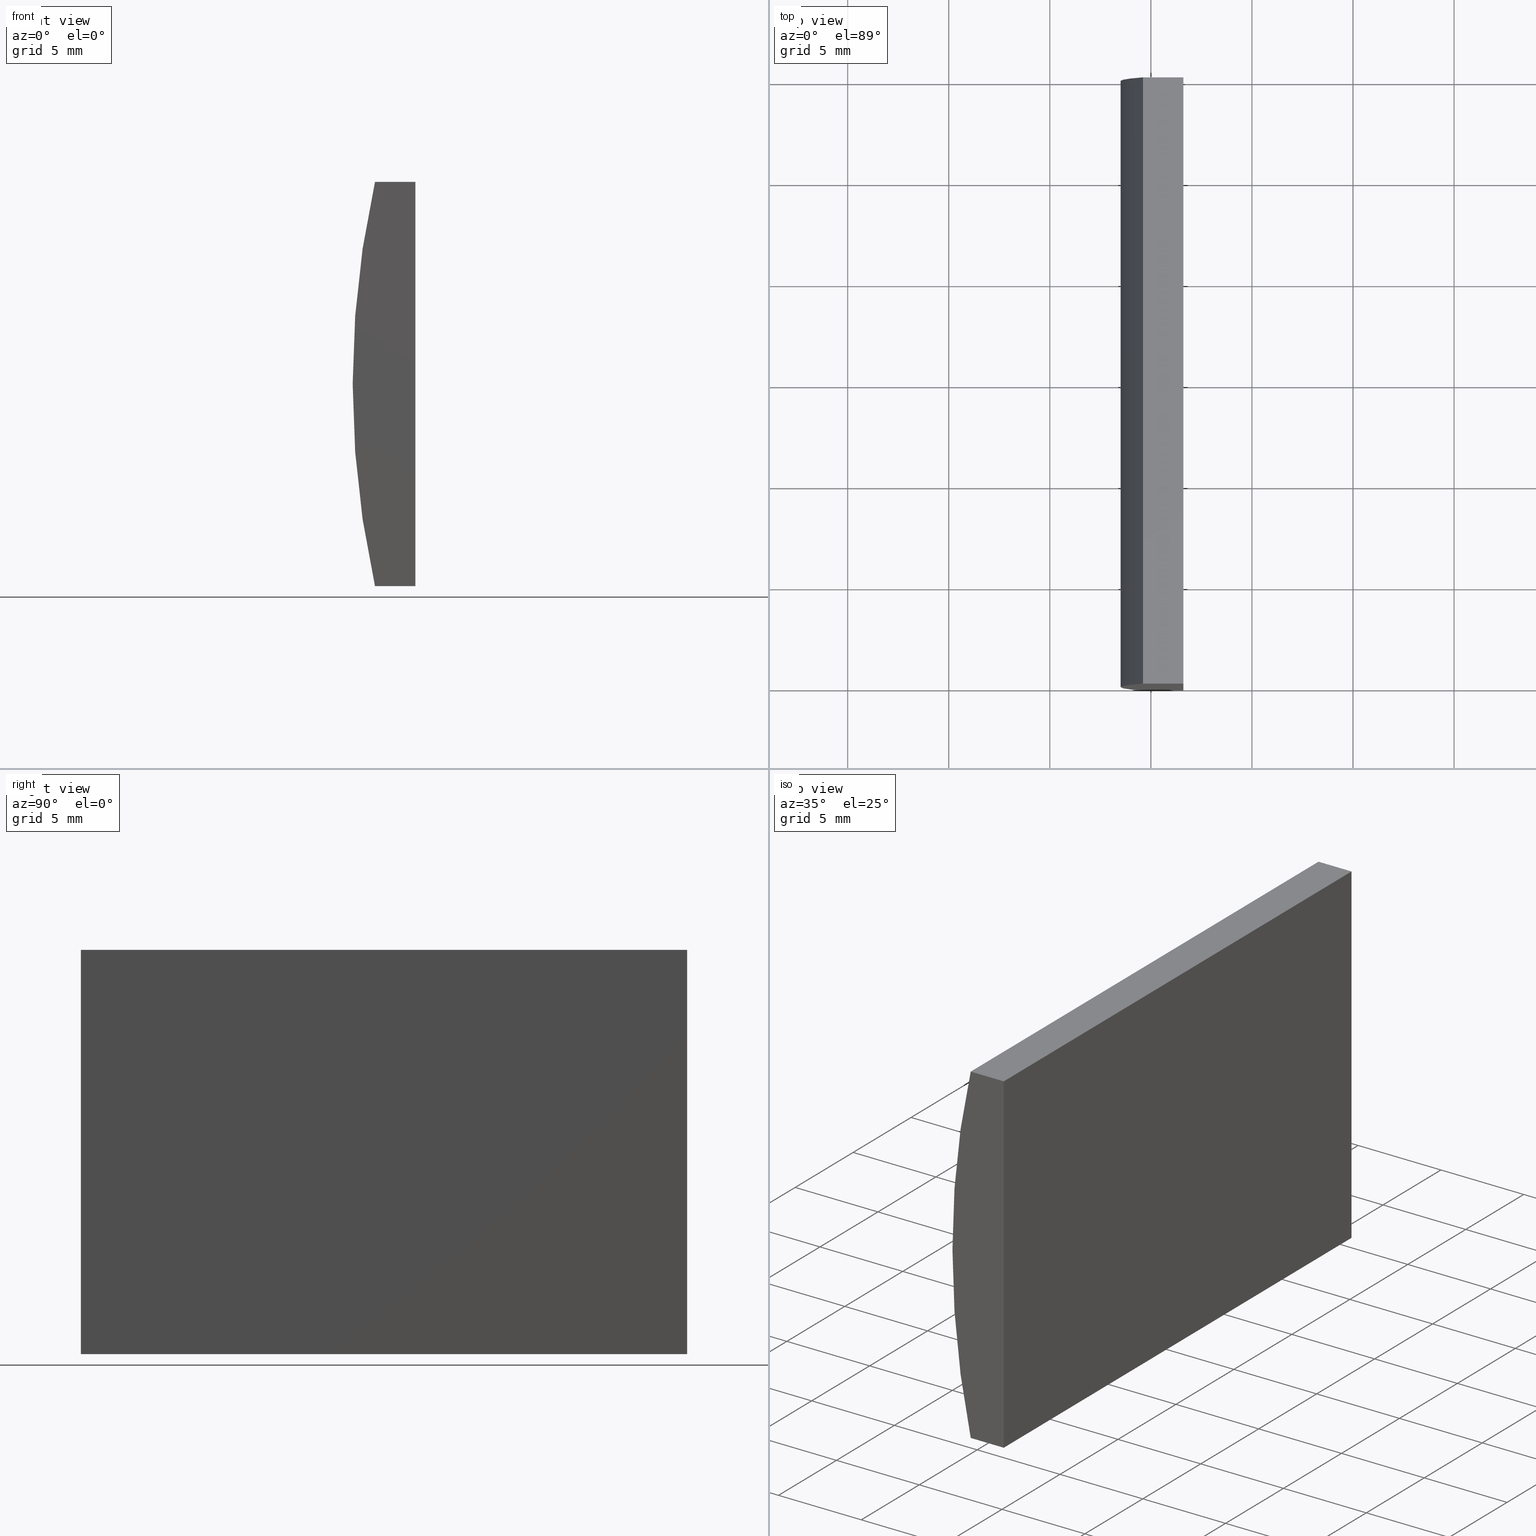
[diagram: canonical four-view strip — front | top / right | iso, engineering-drawing reading convention]
A machine part, canonical four-view strip (front | top / right | iso — engineering-drawing reading convention). The complete STEP part file that produces these views, byte-faithful:
ISO-10303-21;
HEADER;
FILE_DESCRIPTION (( 'STEP AP214' ),
    '1' );
FILE_NAME ('155297.STEP',
    '2019-06-26T06:40:22',
    ( 'user' ),
    ( '΢���й�' ),
    'SwSTEP 2.0',
    'SolidWorks 2016',
    '' );
FILE_SCHEMA (( 'AUTOMOTIVE_DESIGN' ));
ENDSEC;

DATA;
#1 = LINE ( 'NONE', #35, #65 ) ;
#2 = VERTEX_POINT ( 'NONE', #10 ) ;
#3 = EDGE_LOOP ( 'NONE', ( #180, #17, #72, #103 ) ) ;
#4 = FILL_AREA_STYLE_COLOUR ( '', #193 ) ;
#5 = PRESENTATION_LAYER_ASSIGNMENT (  '', '', ( #177 ) ) ;
#6 = SURFACE_STYLE_FILL_AREA ( #164 ) ;
#7 = CARTESIAN_POINT ( 'NONE',  ( -38.39479566514873500, 30.00000000000000000, 10.00000000000000000 ) ) ;
#8 = SURFACE_STYLE_USAGE ( .BOTH. , #127 ) ;
#9 =( GEOMETRIC_REPRESENTATION_CONTEXT ( 3 ) GLOBAL_UNCERTAINTY_ASSIGNED_CONTEXT ( ( #88 ) ) GLOBAL_UNIT_ASSIGNED_CONTEXT ( ( #160, #86, #172 ) ) REPRESENTATION_CONTEXT ( 'NONE', 'WORKASPACE' ) );
#10 = CARTESIAN_POINT ( 'NONE',  ( -40.39099662120761300, 0.0000000000000000000, 10.00000000000000000 ) ) ;
#11 = VERTEX_POINT ( 'NONE', #84 ) ;
#12 = LINE ( 'NONE', #62, #139 ) ;
#13 = MECHANICAL_DESIGN_GEOMETRIC_PRESENTATION_REPRESENTATION (  '', ( #200 ), #9 ) ;
#14 = DIRECTION ( 'NONE',  ( 0.0000000000000000000, 0.0000000000000000000, -1.000000000000000000 ) ) ;
#15 = DIRECTION ( 'NONE',  ( 0.0000000000000000000, -0.0000000000000000000, 1.000000000000000000 ) ) ;
#16 =( LENGTH_UNIT ( ) NAMED_UNIT ( * ) SI_UNIT ( .MILLI., .METRE. ) );
#17 = ORIENTED_EDGE ( 'NONE', *, *, #116, .F. ) ;
#18 = ORIENTED_EDGE ( 'NONE', *, *, #44, .T. ) ;
#19 = VERTEX_POINT ( 'NONE', #7 ) ;
#20 = DIRECTION ( 'NONE',  ( -1.000000000000000000, -0.0000000000000000000, -3.476049784890796200E-015 ) ) ;
#21 = AXIS2_PLACEMENT_3D ( 'NONE', #131, #157, #51 ) ;
#22 = CARTESIAN_POINT ( 'NONE',  ( -38.39479566514874200, 0.0000000000000000000, -9.999999999999992900 ) ) ;
#23 = DIRECTION ( 'NONE',  ( -3.469446951953615200E-016, -0.0000000000000000000, -1.000000000000000000 ) ) ;
#24 = VECTOR ( 'NONE', #186, 1000.000000000000000 ) ;
#25 = EDGE_CURVE ( 'NONE', #145, #2, #12, .T. ) ;
#26 = FACE_OUTER_BOUND ( 'NONE', #48, .T. ) ;
#27 =( NAMED_UNIT ( * ) SI_UNIT ( $, .STERADIAN. ) SOLID_ANGLE_UNIT ( ) );
#28 = ORIENTED_EDGE ( 'NONE', *, *, #90, .T. ) ;
#29 = AXIS2_PLACEMENT_3D ( 'NONE', #113, #191, #159 ) ;
#30 = PRODUCT_DEFINITION_FORMATION_WITH_SPECIFIED_SOURCE ( '�κ�', '', #156, .NOT_KNOWN. ) ;
#31 = ORIENTED_EDGE ( 'NONE', *, *, #199, .F. ) ;
#32 = VERTEX_POINT ( 'NONE', #118 ) ;
#33 = DIRECTION ( 'NONE',  ( 0.0000000000000000000, -0.0000000000000000000, 1.000000000000000000 ) ) ;
#34 = CARTESIAN_POINT ( 'NONE',  ( 4.355204334851265500, 30.00000000000000000, 4.286263797015675000E-017 ) ) ;
#35 = CARTESIAN_POINT ( 'NONE',  ( -38.39479566514874200, 30.00000000000000000, -9.999999999999992900 ) ) ;
#36 = SURFACE_STYLE_USAGE ( .BOTH. , #187 ) ;
#37 = ORIENTED_EDGE ( 'NONE', *, *, #56, .F. ) ;
#38 = EDGE_LOOP ( 'NONE', ( #54, #95, #198, #122 ) ) ;
#39 = CARTESIAN_POINT ( 'NONE',  ( -38.39479566514874200, 30.00000000000000000, -9.999999999999992900 ) ) ;
#40 = EDGE_CURVE ( 'NONE', #2, #144, #101, .T. ) ;
#41 = DIRECTION ( 'NONE',  ( 0.0000000000000000000, 1.000000000000000000, 0.0000000000000000000 ) ) ;
#42 = EDGE_LOOP ( 'NONE', ( #64, #176, #18, #52 ) ) ;
#43 = VECTOR ( 'NONE', #47, 1000.000000000000000 ) ;
#44 = EDGE_CURVE ( 'NONE', #19, #126, #190, .T. ) ;
#45 = CARTESIAN_POINT ( 'NONE',  ( -38.39479566514873500, 0.0000000000000000000, 10.00000000000000000 ) ) ;
#46 = AXIS2_PLACEMENT_3D ( 'NONE', #74, #141, #135 ) ;
#47 = DIRECTION ( 'NONE',  ( -0.0000000000000000000, -1.000000000000000000, -0.0000000000000000000 ) ) ;
#48 = EDGE_LOOP ( 'NONE', ( #28, #115, #151, #147 ) ) ;
#49 = DIRECTION ( 'NONE',  ( 1.000000000000000000, 0.0000000000000000000, 0.0000000000000000000 ) ) ;
#50 = CARTESIAN_POINT ( 'NONE',  ( -40.39099662120761300, 30.00000000000000000, -10.00000000000000000 ) ) ;
#51 = DIRECTION ( 'NONE',  ( -1.000000000000000000, 0.0000000000000000000, -0.0000000000000000000 ) ) ;
#52 = ORIENTED_EDGE ( 'NONE', *, *, #174, .T. ) ;
#53 = FACE_OUTER_BOUND ( 'NONE', #3, .T. ) ;
#54 = ORIENTED_EDGE ( 'NONE', *, *, #116, .T. ) ;
#55 = CARTESIAN_POINT ( 'NONE',  ( 4.355204334851265500, 30.00000000000000000, 4.286263797015675000E-017 ) ) ;
#56 = EDGE_CURVE ( 'NONE', #126, #11, #1, .T. ) ;
#57 = ADVANCED_FACE ( 'NONE', ( #91 ), #155, .F. ) ;
#58 = PLANE ( 'NONE',  #183 ) ;
#59 = PRESENTATION_STYLE_ASSIGNMENT (( #36 ) ) ;
#60 = CARTESIAN_POINT ( 'NONE',  ( -40.39099662120761300, 0.0000000000000000000, -10.00000000000000000 ) ) ;
#61 = LINE ( 'NONE', #194, #192 ) ;
#62 = CARTESIAN_POINT ( 'NONE',  ( -40.39099662120761300, 30.00000000000000000, 10.00000000000000000 ) ) ;
#63 = ADVANCED_FACE ( 'NONE', ( #53 ), #136, .F. ) ;
#64 = ORIENTED_EDGE ( 'NONE', *, *, #171, .T. ) ;
#65 = VECTOR ( 'NONE', #93, 1000.000000000000000 ) ;
#66 = CARTESIAN_POINT ( 'NONE',  ( -40.39099662120761300, 30.00000000000000000, 10.00000000000000000 ) ) ;
#67 = MECHANICAL_DESIGN_GEOMETRIC_PRESENTATION_REPRESENTATION (  '', ( #177 ), #105 ) ;
#68 = ORIENTED_EDGE ( 'NONE', *, *, #73, .F. ) ;
#69 = FACE_OUTER_BOUND ( 'NONE', #42, .T. ) ;
#70 = PLANE ( 'NONE',  #128 ) ;
#71 = ADVANCED_FACE ( 'NONE', ( #26 ), #83, .T. ) ;
#72 = ORIENTED_EDGE ( 'NONE', *, *, #203, .F. ) ;
#73 = EDGE_CURVE ( 'NONE', #19, #144, #110, .T. ) ;
#74 = CARTESIAN_POINT ( 'NONE',  ( -38.39479566514874200, 30.00000000000000000, -9.999999999999992900 ) ) ;
#75 = LINE ( 'NONE', #50, #108 ) ;
#76 = FILL_AREA_STYLE ('',( #123 ) ) ;
#77 = CIRCLE ( 'NONE', #29, 45.85000000000005100 ) ;
#78 = CARTESIAN_POINT ( 'NONE',  ( -40.39099662120761300, 0.0000000000000000000, 10.00000000000000000 ) ) ;
#79 =( NAMED_UNIT ( * ) PLANE_ANGLE_UNIT ( ) SI_UNIT ( $, .RADIAN. ) );
#80 = CIRCLE ( 'NONE', #130, 45.85000000000005100 ) ;
#81 = DIRECTION ( 'NONE',  ( -0.0000000000000000000, -1.000000000000000000, -0.0000000000000000000 ) ) ;
#82 = UNCERTAINTY_MEASURE_WITH_UNIT (LENGTH_MEASURE( 1.000000000000000100E-005 ), #16, 'distance_accuracy_value', 'NONE');
#83 = CYLINDRICAL_SURFACE ( 'NONE', #99, 45.85000000000005100 ) ;
#84 = CARTESIAN_POINT ( 'NONE',  ( -38.39479566514874200, 0.0000000000000000000, -9.999999999999992900 ) ) ;
#85 = DIRECTION ( 'NONE',  ( 0.0000000000000000000, 0.0000000000000000000, 1.000000000000000000 ) ) ;
#86 =( NAMED_UNIT ( * ) PLANE_ANGLE_UNIT ( ) SI_UNIT ( $, .RADIAN. ) );
#87 = VECTOR ( 'NONE', #102, 1000.000000000000000 ) ;
#88 = UNCERTAINTY_MEASURE_WITH_UNIT (LENGTH_MEASURE( 1.000000000000000100E-005 ), #160, 'distance_accuracy_value', 'NONE');
#89 = AXIS2_PLACEMENT_3D ( 'NONE', #104, #140, #49 ) ;
#90 = EDGE_CURVE ( 'NONE', #109, #2, #80, .T. ) ;
#91 = FACE_OUTER_BOUND ( 'NONE', #132, .T. ) ;
#92 = PRODUCT_DEFINITION_SHAPE ( 'NONE', 'NONE',  #179 ) ;
#93 = DIRECTION ( 'NONE',  ( -0.0000000000000000000, -1.000000000000000000, -0.0000000000000000000 ) ) ;
#94 = APPLICATION_PROTOCOL_DEFINITION ( 'draft international standard', 'automotive_design', 1998, #162 ) ;
#95 = ORIENTED_EDGE ( 'NONE', *, *, #106, .F. ) ;
#96 = COLOUR_RGB ( '',1.000000000000000000, 1.000000000000000000, 1.000000000000000000 ) ;
#97 = VECTOR ( 'NONE', #153, 1000.000000000000000 ) ;
#98 = DIRECTION ( 'NONE',  ( 0.0000000000000000000, 1.000000000000000000, 0.0000000000000000000 ) ) ;
#99 = AXIS2_PLACEMENT_3D ( 'NONE', #34, #81, #14 ) ;
#100 = ORIENTED_EDGE ( 'NONE', *, *, #44, .F. ) ;
#101 = LINE ( 'NONE', #78, #97 ) ;
#102 = DIRECTION ( 'NONE',  ( -1.000000000000000000, -0.0000000000000000000, -3.476049784890796200E-015 ) ) ;
#103 = ORIENTED_EDGE ( 'NONE', *, *, #40, .F. ) ;
#104 = CARTESIAN_POINT ( 'NONE',  ( 0.0000000000000000000, 0.0000000000000000000, 0.0000000000000000000 ) ) ;
#105 =( GEOMETRIC_REPRESENTATION_CONTEXT ( 3 ) GLOBAL_UNCERTAINTY_ASSIGNED_CONTEXT ( ( #204 ) ) GLOBAL_UNIT_ASSIGNED_CONTEXT ( ( #117, #79, #27 ) ) REPRESENTATION_CONTEXT ( 'NONE', 'WORKASPACE' ) );
#106 = EDGE_CURVE ( 'NONE', #32, #109, #168, .T. ) ;
#107 = APPLICATION_PROTOCOL_DEFINITION ( 'draft international standard', 'automotive_design', 1998, #166 ) ;
#108 = VECTOR ( 'NONE', #20, 1000.000000000000000 ) ;
#109 = VERTEX_POINT ( 'NONE', #150 ) ;
#110 = LINE ( 'NONE', #184, #43 ) ;
#111 = CLOSED_SHELL ( 'NONE', ( #71, #57, #143, #196, #165, #63 ) ) ;
#112 = LINE ( 'NONE', #22, #121 ) ;
#113 = CARTESIAN_POINT ( 'NONE',  ( 4.355204334851265500, 30.00000000000000000, 4.286263797015675000E-017 ) ) ;
#114 = PRESENTATION_LAYER_ASSIGNMENT (  '', '', ( #200 ) ) ;
#115 = ORIENTED_EDGE ( 'NONE', *, *, #25, .F. ) ;
#116 = EDGE_CURVE ( 'NONE', #11, #109, #182, .T. ) ;
#117 =( LENGTH_UNIT ( ) NAMED_UNIT ( * ) SI_UNIT ( .MILLI., .METRE. ) );
#118 = CARTESIAN_POINT ( 'NONE',  ( -40.39099662120761300, 30.00000000000000000, -10.00000000000000000 ) ) ;
#119 = ADVANCED_BREP_SHAPE_REPRESENTATION ( '155297', ( #173, #89 ), #185 ) ;
#120 = PLANE ( 'NONE',  #46 ) ;
#121 = VECTOR ( 'NONE', #146, 1000.000000000000000 ) ;
#122 = ORIENTED_EDGE ( 'NONE', *, *, #56, .T. ) ;
#123 = FILL_AREA_STYLE_COLOUR ( '', #96 ) ;
#124 = ORIENTED_EDGE ( 'NONE', *, *, #203, .T. ) ;
#125 = CARTESIAN_POINT ( 'NONE',  ( -40.39099662120761300, 30.00000000000000000, -10.00000000000000000 ) ) ;
#126 = VERTEX_POINT ( 'NONE', #202 ) ;
#127 = SURFACE_SIDE_STYLE ('',( #6 ) ) ;
#128 = AXIS2_PLACEMENT_3D ( 'NONE', #125, #142, #170 ) ;
#129 = DIRECTION ( 'NONE',  ( 1.000000000000000000, 0.0000000000000000000, 0.0000000000000000000 ) ) ;
#130 = AXIS2_PLACEMENT_3D ( 'NONE', #148, #41, #85 ) ;
#131 = CARTESIAN_POINT ( 'NONE',  ( -40.39099662120761300, 30.00000000000000000, 10.00000000000000000 ) ) ;
#132 = EDGE_LOOP ( 'NONE', ( #167, #68, #31, #169 ) ) ;
#133 =( NAMED_UNIT ( * ) SI_UNIT ( $, .STERADIAN. ) SOLID_ANGLE_UNIT ( ) );
#134 = SURFACE_STYLE_FILL_AREA ( #76 ) ;
#135 = DIRECTION ( 'NONE',  ( 3.469446951953615700E-016, 0.0000000000000000000, 1.000000000000000000 ) ) ;
#136 = PLANE ( 'NONE',  #181 ) ;
#137 = PRODUCT_RELATED_PRODUCT_CATEGORY ( 'part', '', ( #156 ) ) ;
#138 = FACE_OUTER_BOUND ( 'NONE', #188, .T. ) ;
#139 = VECTOR ( 'NONE', #195, 1000.000000000000000 ) ;
#140 = DIRECTION ( 'NONE',  ( 0.0000000000000000000, 0.0000000000000000000, 1.000000000000000000 ) ) ;
#141 = DIRECTION ( 'NONE',  ( -1.000000000000000000, 0.0000000000000000000, 3.469446951953615700E-016 ) ) ;
#142 = DIRECTION ( 'NONE',  ( -3.476049784890796600E-015, 0.0000000000000000000, 1.000000000000000000 ) ) ;
#143 = ADVANCED_FACE ( 'NONE', ( #138 ), #120, .F. ) ;
#144 = VERTEX_POINT ( 'NONE', #45 ) ;
#145 = VERTEX_POINT ( 'NONE', #66 ) ;
#146 = DIRECTION ( 'NONE',  ( -3.469446951953615200E-016, -0.0000000000000000000, -1.000000000000000000 ) ) ;
#147 = ORIENTED_EDGE ( 'NONE', *, *, #106, .T. ) ;
#148 = CARTESIAN_POINT ( 'NONE',  ( 4.355204334851265500, 0.0000000000000000000, 4.286263797015675000E-017 ) ) ;
#149 = PRODUCT_CONTEXT ( 'NONE', #162, 'mechanical' ) ;
#150 = CARTESIAN_POINT ( 'NONE',  ( -40.39099662120761300, 0.0000000000000000000, -10.00000000000000000 ) ) ;
#151 = ORIENTED_EDGE ( 'NONE', *, *, #171, .F. ) ;
#152 = VECTOR ( 'NONE', #23, 1000.000000000000000 ) ;
#153 = DIRECTION ( 'NONE',  ( 1.000000000000000000, 0.0000000000000000000, 0.0000000000000000000 ) ) ;
#154 = CARTESIAN_POINT ( 'NONE',  ( -40.39099662120761300, 30.00000000000000000, -10.00000000000000000 ) ) ;
#155 = PLANE ( 'NONE',  #21 ) ;
#156 = PRODUCT ( '155297', '155297', '', ( #149 ) ) ;
#157 = DIRECTION ( 'NONE',  ( 0.0000000000000000000, 0.0000000000000000000, -1.000000000000000000 ) ) ;
#158 = SHAPE_DEFINITION_REPRESENTATION ( #92, #119 ) ;
#159 = DIRECTION ( 'NONE',  ( 0.0000000000000000000, 0.0000000000000000000, 1.000000000000000000 ) ) ;
#160 =( LENGTH_UNIT ( ) NAMED_UNIT ( * ) SI_UNIT ( .MILLI., .METRE. ) );
#161 = FACE_OUTER_BOUND ( 'NONE', #38, .T. ) ;
#162 = APPLICATION_CONTEXT ( 'automotive_design' ) ;
#163 =( NAMED_UNIT ( * ) PLANE_ANGLE_UNIT ( ) SI_UNIT ( $, .RADIAN. ) );
#164 = FILL_AREA_STYLE ('',( #4 ) ) ;
#165 = ADVANCED_FACE ( 'NONE', ( #69 ), #58, .T. ) ;
#166 = APPLICATION_CONTEXT ( 'automotive_design' ) ;
#167 = ORIENTED_EDGE ( 'NONE', *, *, #40, .T. ) ;
#168 = LINE ( 'NONE', #154, #24 ) ;
#169 = ORIENTED_EDGE ( 'NONE', *, *, #25, .T. ) ;
#170 = DIRECTION ( 'NONE',  ( 1.000000000000000000, 0.0000000000000000000, 3.476049784890796600E-015 ) ) ;
#171 = EDGE_CURVE ( 'NONE', #32, #145, #77, .T. ) ;
#172 =( NAMED_UNIT ( * ) SI_UNIT ( $, .STERADIAN. ) SOLID_ANGLE_UNIT ( ) );
#173 = MANIFOLD_SOLID_BREP ( '͹̨-����1', #111 ) ;
#174 = EDGE_CURVE ( 'NONE', #126, #32, #75, .T. ) ;
#175 = PRODUCT_DEFINITION_CONTEXT ( 'detailed design', #166, 'design' ) ;
#176 = ORIENTED_EDGE ( 'NONE', *, *, #199, .T. ) ;
#177 = STYLED_ITEM ( 'NONE', ( #201 ), #173 ) ;
#178 = ORIENTED_EDGE ( 'NONE', *, *, #73, .T. ) ;
#179 = PRODUCT_DEFINITION ( 'δ֪', '', #30, #175 ) ;
#180 = ORIENTED_EDGE ( 'NONE', *, *, #90, .F. ) ;
#181 = AXIS2_PLACEMENT_3D ( 'NONE', #189, #98, #15 ) ;
#182 = LINE ( 'NONE', #60, #87 ) ;
#183 = AXIS2_PLACEMENT_3D ( 'NONE', #55, #197, #33 ) ;
#184 = CARTESIAN_POINT ( 'NONE',  ( -38.39479566514873500, 30.00000000000000000, 10.00000000000000000 ) ) ;
#185 =( GEOMETRIC_REPRESENTATION_CONTEXT ( 3 ) GLOBAL_UNCERTAINTY_ASSIGNED_CONTEXT ( ( #82 ) ) GLOBAL_UNIT_ASSIGNED_CONTEXT ( ( #16, #163, #133 ) ) REPRESENTATION_CONTEXT ( 'NONE', 'WORKASPACE' ) );
#186 = DIRECTION ( 'NONE',  ( -0.0000000000000000000, -1.000000000000000000, -0.0000000000000000000 ) ) ;
#187 = SURFACE_SIDE_STYLE ('',( #134 ) ) ;
#188 = EDGE_LOOP ( 'NONE', ( #124, #37, #100, #178 ) ) ;
#189 = CARTESIAN_POINT ( 'NONE',  ( 4.355204334851265500, 0.0000000000000000000, 4.286263797015675000E-017 ) ) ;
#190 = LINE ( 'NONE', #39, #152 ) ;
#191 = DIRECTION ( 'NONE',  ( 0.0000000000000000000, 1.000000000000000000, 0.0000000000000000000 ) ) ;
#192 = VECTOR ( 'NONE', #129, 1000.000000000000000 ) ;
#193 = COLOUR_RGB ( '',1.000000000000000000, 1.000000000000000000, 1.000000000000000000 ) ;
#194 = CARTESIAN_POINT ( 'NONE',  ( -40.39099662120761300, 30.00000000000000000, 10.00000000000000000 ) ) ;
#195 = DIRECTION ( 'NONE',  ( -0.0000000000000000000, -1.000000000000000000, -0.0000000000000000000 ) ) ;
#196 = ADVANCED_FACE ( 'NONE', ( #161 ), #70, .F. ) ;
#197 = DIRECTION ( 'NONE',  ( 0.0000000000000000000, 1.000000000000000000, 0.0000000000000000000 ) ) ;
#198 = ORIENTED_EDGE ( 'NONE', *, *, #174, .F. ) ;
#199 = EDGE_CURVE ( 'NONE', #145, #19, #61, .T. ) ;
#200 = STYLED_ITEM ( 'NONE', ( #59 ), #119 ) ;
#201 = PRESENTATION_STYLE_ASSIGNMENT (( #8 ) ) ;
#202 = CARTESIAN_POINT ( 'NONE',  ( -38.39479566514874200, 30.00000000000000000, -9.999999999999992900 ) ) ;
#203 = EDGE_CURVE ( 'NONE', #144, #11, #112, .T. ) ;
#204 = UNCERTAINTY_MEASURE_WITH_UNIT (LENGTH_MEASURE( 1.000000000000000100E-005 ), #117, 'distance_accuracy_value', 'NONE');
ENDSEC;
END-ISO-10303-21;
